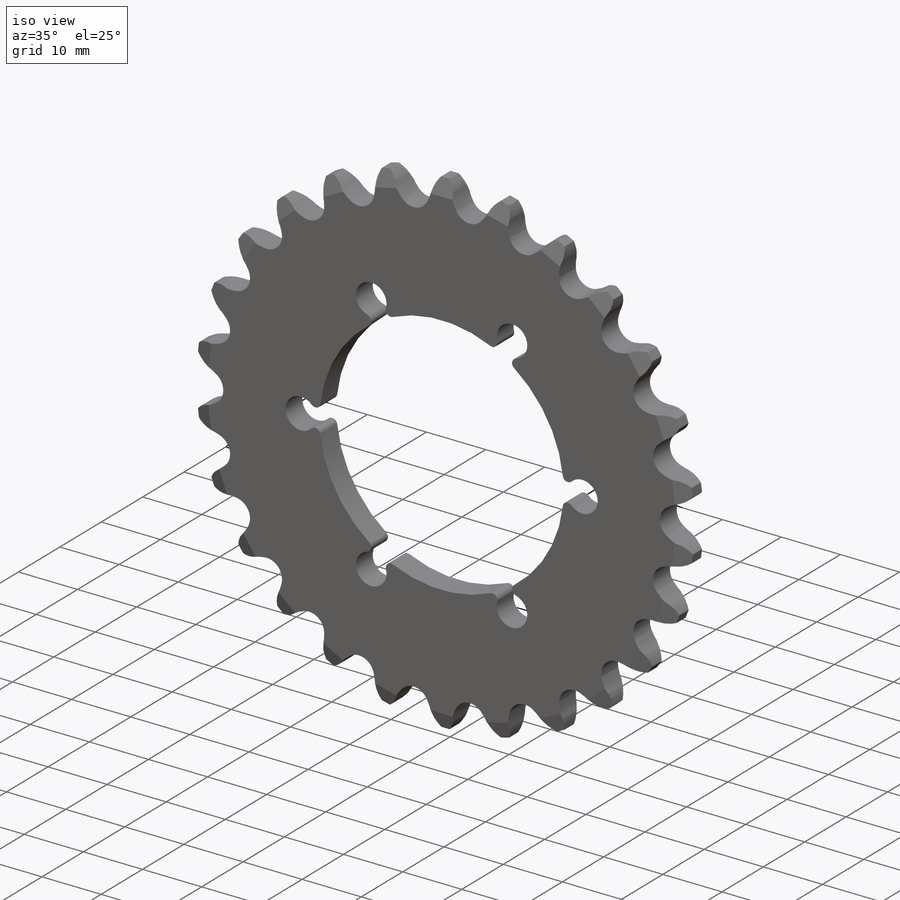
[diagram: iso view]
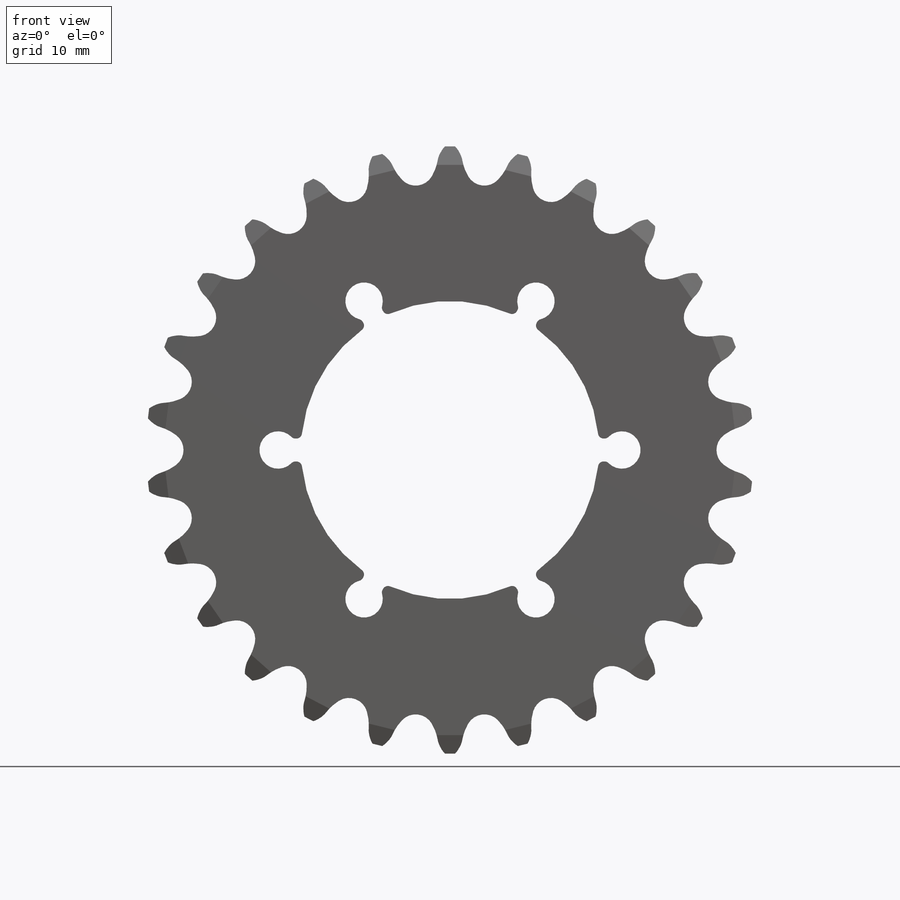
[diagram: front view]
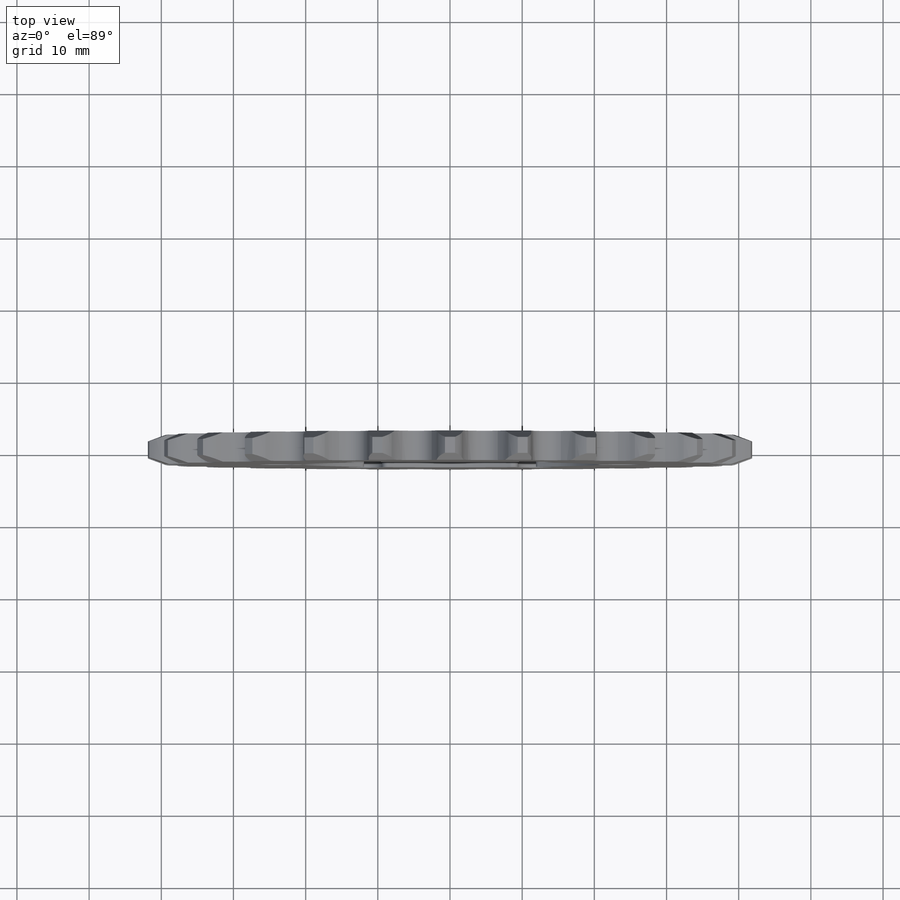
[diagram: top view]
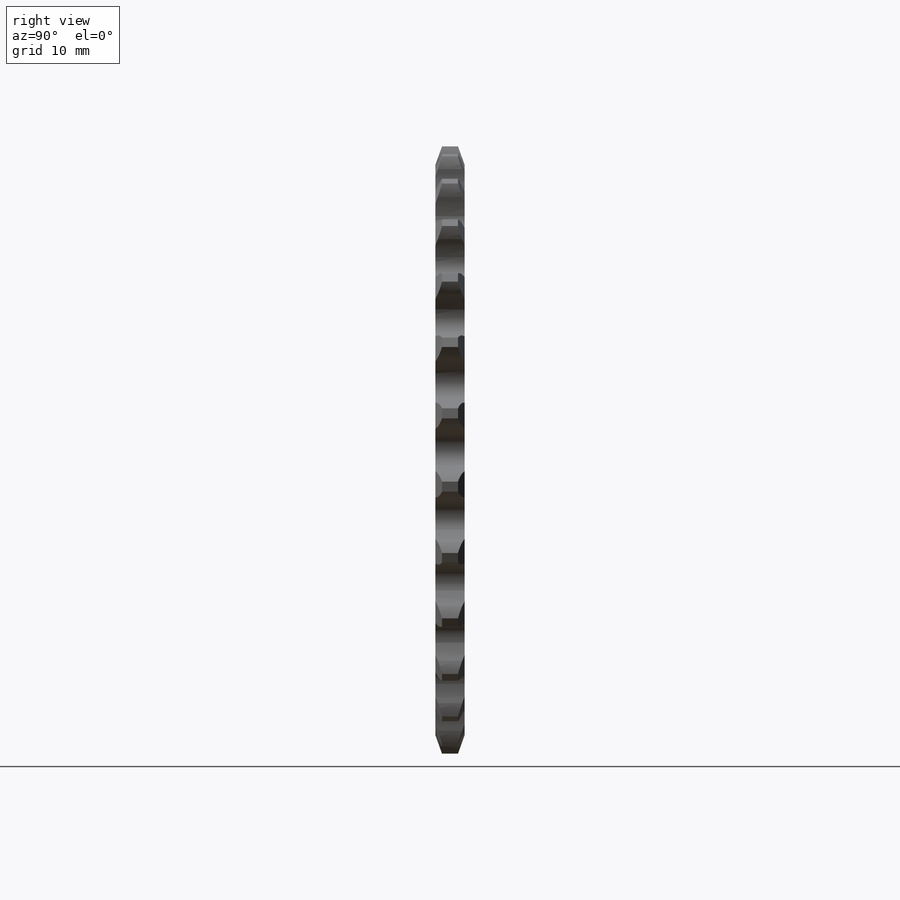
[diagram: right view]
SOLIDWORKS PART (.sldprt)
format: sldprt  version: not decoded by parser v0  size: 579,072 bytes
history: native  units: mm
features: sketch x4, cut_extrude x2, pattern_circular x2, chamfer x2, material x1, extrude x1, fillet x1 (+11 scaffold rows collapsed)
feature tree (24):
  scaffold x11  (default folders/planes/origin — collapsed)
  material  "6063-O"
  sketch  "Sketch1"  dims[D1=~84.16036mm D2=41.275mm]
  extrude  "Extrude1"  Depth=4.064mm
  sketch  "Sketch2"  dims[c1.D1=5.1816mm c1.D2=23.8125mm c1.D3=23.8125mm c2.D3=30.0deg c2.D4=3.175mm]
  cut_extrude  "Extrude2"  [1 undecoded]
  pattern_circular  "CirPattern1"  Count=6 Angle=360deg
  chamfer  "Chamfer1"  Distance=2.54mm Angle=20deg
  chamfer  "Chamfer2"  Distance=2.54mm Angle=20deg
  sketch  "Sketch3"  dims[c1.D1=2.5908mm c1.D2=~6.649667mm c2.D1=2.5908mm c2.D2=~6.649667mm c2.D4=~4.173805mm c2.D7=2.5908mm c2.D8=2.5908mm c2.D6=~4.173805mm c3.D1=~0.675628mm c3.D3=~0.675628mm c4.D3=~19.664998deg c5.D3=~39.51075mm c6.D3=~6.923077deg c7.D3=~4.762495mm c8.D3=~19.664998deg c8.D5=~8.756824mm c8.D6=~0.675628mm c9.D6=~39.329996deg c9.D3=~0.675628mm c10.D3=~39.329996deg c10.D6=~39.222672mm c11.D6=~6.923077deg c11.D7=7.112mm c11.D8=~6.905338mm c12.D7=~6.521615mm c12.D8=~2.831262mm c12.D9=~39.51075mm c12.D6=~10.814954mm c12.D10=~39.222672mm c13.D10=~6.923077deg c13.D5=1.397mm]
  cut_extrude  "Extrude3"  [1 undecoded]
  pattern_circular  "CirPattern2"  Count=26 Angle=360deg
  fillet  "Fillet1"  Radius=0.762mm
  sketch  "Sketch4"
decode coverage: 9 of 12 modeling features carry decoded parameters
note: ~ marks probable driven/reference dimensions
note: 2 parameter values undecoded
note: suppression state not decoded; provenance and decode notes live in map.json
